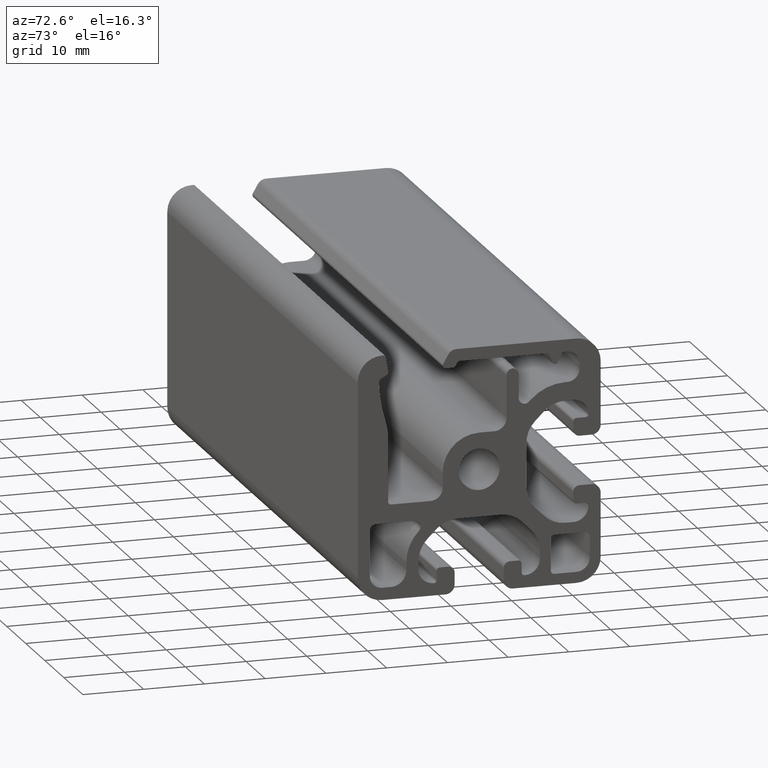
[diagram: clean part render]
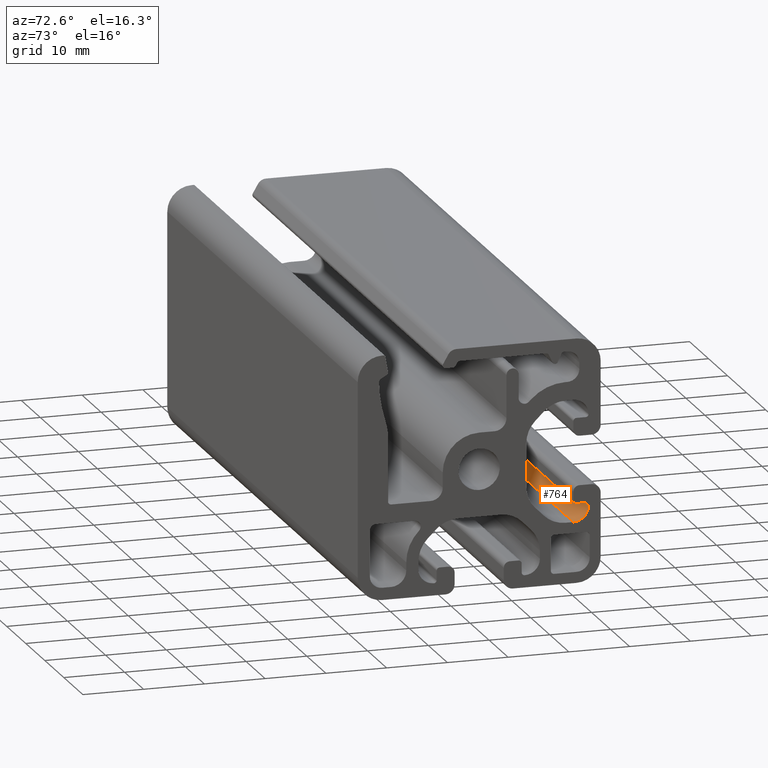
[diagram: same view with one face highlighted and labeled with its STEP entity id]
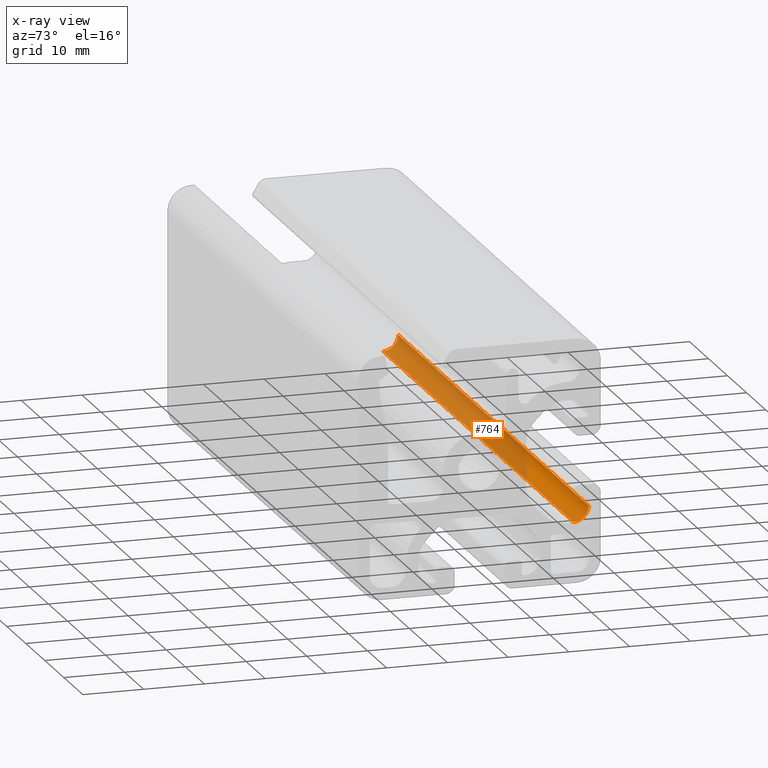
[diagram: x-ray of the same camera — body ghosted, the highlighted face saturated]
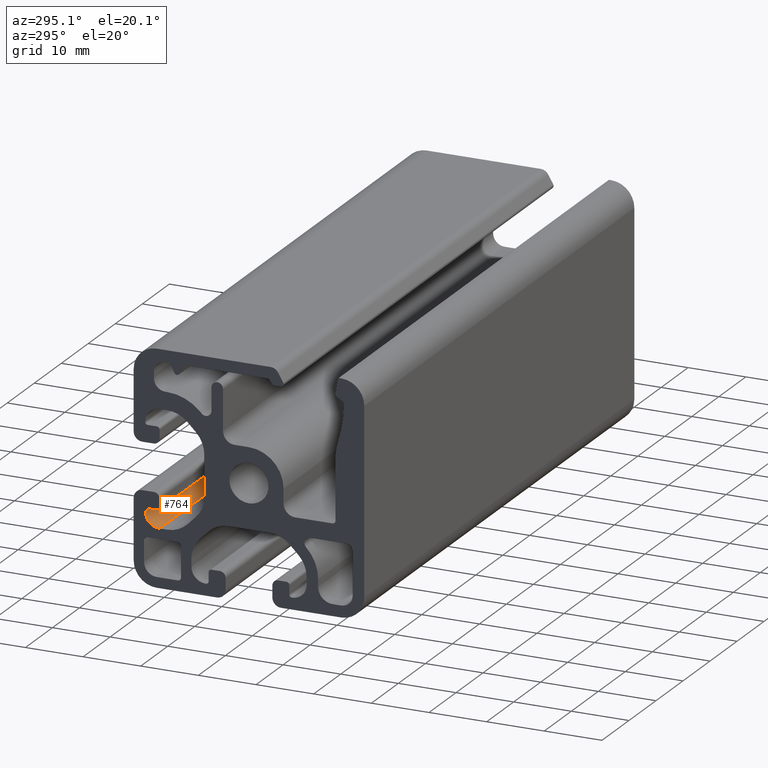
[diagram: same view with one face highlighted and labeled with its STEP entity id]
A machine part, auxiliary view. The second image highlights one B-rep face of the part: STEP entity #764.
The next image is the same camera in x-ray: the body ghosted, the highlighted face saturated — about 70% of this face is hidden behind the body in this view.
A second angle (auxiliary view) of the same face is appended — the face is thin or edge-on in the first view.
In plain terms, the highlighted cylindrical surface (edge-blend (fillet) strip) has radius 2.5 mm, axis along (-1, -0, -0).
Its self-contained STEP definition (entity closure, byte-faithful):
#125 = DIRECTION ( 'NONE',  ( 0.0000000000000000000, 0.0000000000000000000, -1.000000000000000000 ) ) ;
#369 = CARTESIAN_POINT ( 'NONE',  ( 59.18367346938774887, 70.39795897456463081, -9.999999790891500595 ) ) ;
#452 = CARTESIAN_POINT ( 'NONE',  ( 59.18367346938774887, 72.89795897456463081, -7.499999790891498819 ) ) ;
#480 = CARTESIAN_POINT ( 'NONE',  ( 59.18367346938774887, 70.39795897456461660, -7.499999790891470397 ) ) ;
#544 = CARTESIAN_POINT ( 'NONE',  ( 59.18367346938774887, 70.39795897456461660, -7.499999790891470397 ) ) ;
#573 = EDGE_CURVE ( 'NONE', #3456, #1436, #3116, .T. ) ;
#633 = VECTOR ( 'NONE', #1264, 1000.000000000000000 ) ;
#649 = FACE_OUTER_BOUND ( 'NONE', #2583, .T. ) ;
#667 = EDGE_CURVE ( 'NONE', #766, #2176, #1463, .T. ) ;
#750 = CARTESIAN_POINT ( 'NONE',  ( -40.81632653061225824, 70.39795897456461660, -7.499999790891470397 ) ) ;
#764 = ADVANCED_FACE ( 'NONE', ( #649 ), #3172, .F. ) ;
#766 = VERTEX_POINT ( 'NONE', #891 ) ;
#891 = CARTESIAN_POINT ( 'NONE',  ( 59.18367346938774887, 72.89795897456463081, -7.499999790891498819 ) ) ;
#1264 = DIRECTION ( 'NONE',  ( -1.000000000000000000, -0.0000000000000000000, -0.0000000000000000000 ) ) ;
#1436 = VERTEX_POINT ( 'NONE', #3312 ) ;
#1463 = CIRCLE ( 'NONE', #3424, 2.500000000000023093 ) ;
#1500 = LINE ( 'NONE', #3264, #633 ) ;
#1819 = ORIENTED_EDGE ( 'NONE', *, *, #573, .T. ) ;
#1862 = AXIS2_PLACEMENT_3D ( 'NONE', #750, #3384, #2063 ) ;
#1979 = ORIENTED_EDGE ( 'NONE', *, *, #667, .F. ) ;
#2057 = VECTOR ( 'NONE', #3425, 1000.000000000000000 ) ;
#2063 = DIRECTION ( 'NONE',  ( 0.0000000000000000000, 0.0000000000000000000, -1.000000000000000000 ) ) ;
#2176 = VERTEX_POINT ( 'NONE', #369 ) ;
#2190 = AXIS2_PLACEMENT_3D ( 'NONE', #544, #2557, #4200 ) ;
#2557 = DIRECTION ( 'NONE',  ( -1.000000000000000000, -0.0000000000000000000, -0.0000000000000000000 ) ) ;
#2583 = EDGE_LOOP ( 'NONE', ( #1819, #2621, #1979, #3246 ) ) ;
#2591 = EDGE_CURVE ( 'NONE', #2176, #1436, #1500, .T. ) ;
#2621 = ORIENTED_EDGE ( 'NONE', *, *, #2591, .F. ) ;
#2707 = EDGE_CURVE ( 'NONE', #766, #3456, #3620, .T. ) ;
#2788 = DIRECTION ( 'NONE',  ( -1.000000000000000000, -0.0000000000000000000, -0.0000000000000000000 ) ) ;
#3116 = CIRCLE ( 'NONE', #1862, 2.500000000000023093 ) ;
#3172 = CYLINDRICAL_SURFACE ( 'NONE', #2190, 2.500000000000023093 ) ;
#3215 = CARTESIAN_POINT ( 'NONE',  ( -40.81632653061225824, 72.89795897456463081, -7.499999790891498819 ) ) ;
#3246 = ORIENTED_EDGE ( 'NONE', *, *, #2707, .T. ) ;
#3264 = CARTESIAN_POINT ( 'NONE',  ( 59.18367346938774887, 70.39795897456463081, -9.999999790891500595 ) ) ;
#3312 = CARTESIAN_POINT ( 'NONE',  ( -40.81632653061225824, 70.39795897456463081, -9.999999790891500595 ) ) ;
#3384 = DIRECTION ( 'NONE',  ( -1.000000000000000000, -0.0000000000000000000, -0.0000000000000000000 ) ) ;
#3424 = AXIS2_PLACEMENT_3D ( 'NONE', #480, #2788, #125 ) ;
#3425 = DIRECTION ( 'NONE',  ( -1.000000000000000000, -0.0000000000000000000, -0.0000000000000000000 ) ) ;
#3456 = VERTEX_POINT ( 'NONE', #3215 ) ;
#3620 = LINE ( 'NONE', #452, #2057 ) ;
#4200 = DIRECTION ( 'NONE',  ( 0.0000000000000000000, 0.0000000000000000000, 1.000000000000000000 ) ) ;